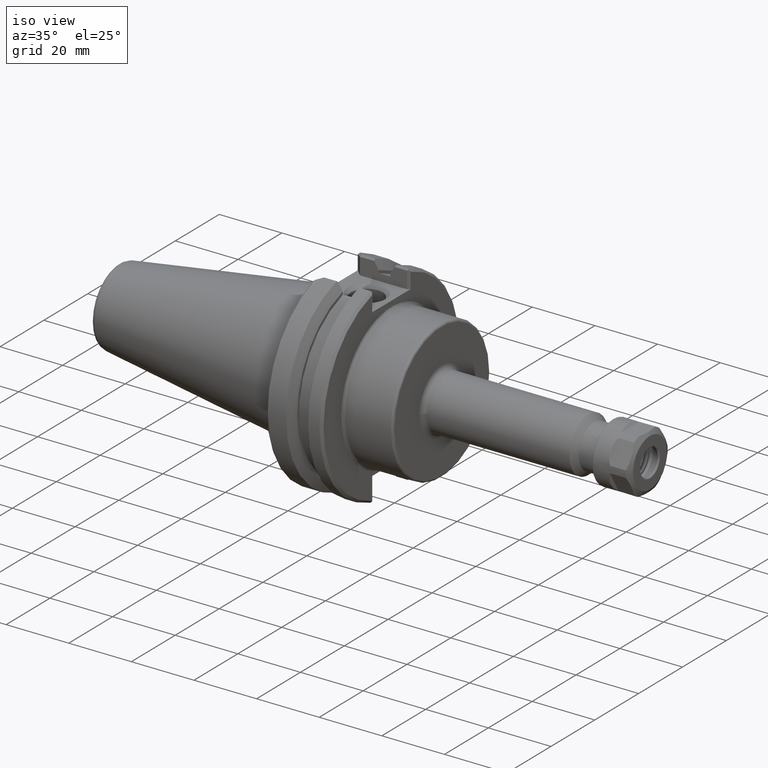
[diagram: clean part render]
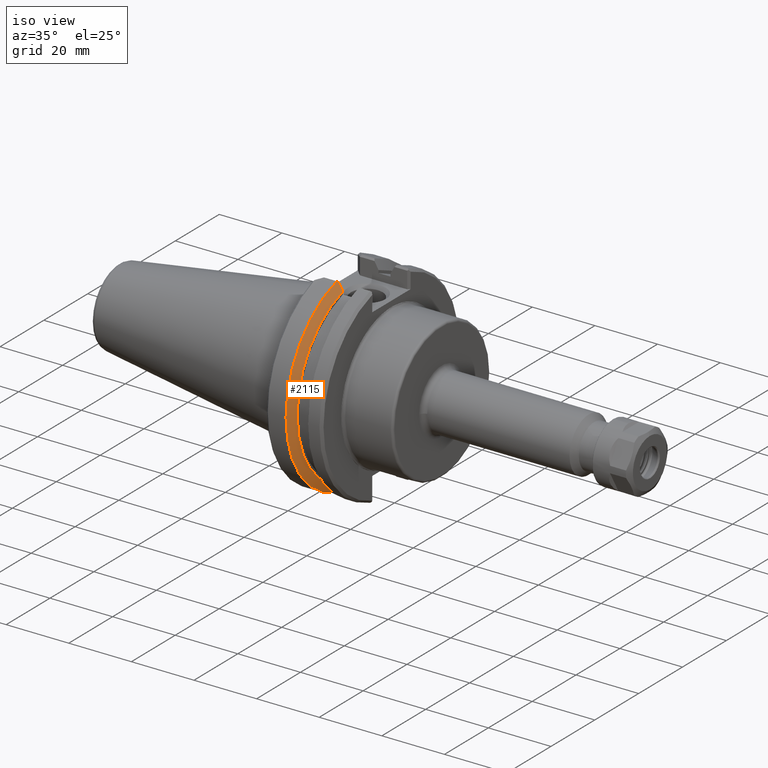
[diagram: same view with one face highlighted and labeled with its STEP entity id]
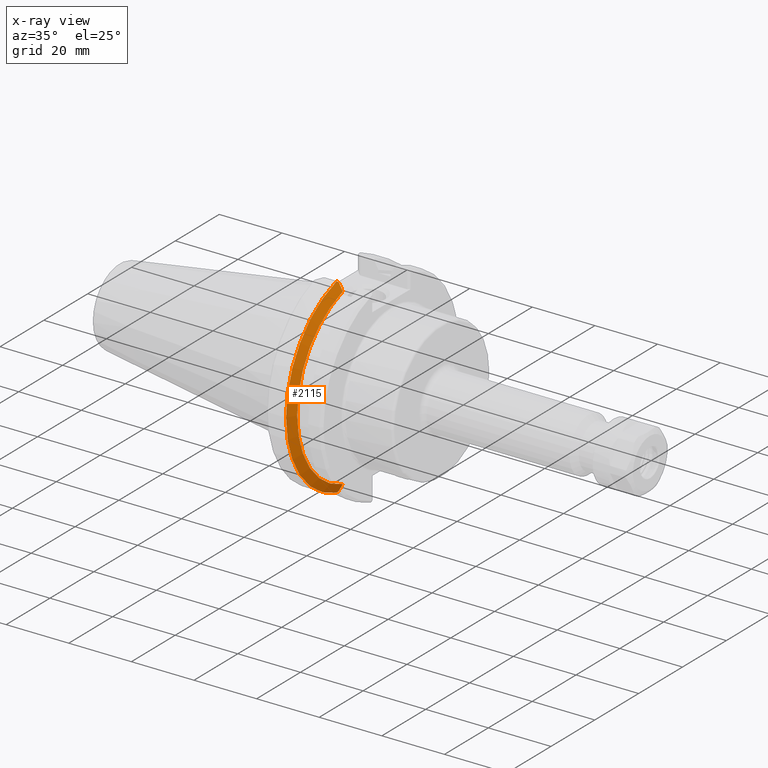
[diagram: x-ray of the same camera — body ghosted, the highlighted face saturated]
A machine part, iso view. The second image highlights one B-rep face of the part: STEP entity #2115.
The next image is the same camera in x-ray: the body ghosted, the highlighted face saturated — about 0% of this face is hidden behind the body in this view.
In plain terms, the highlighted conical surface has half-angle 60 deg.
Its self-contained STEP definition (entity closure, byte-faithful):
#46=(
BOUNDED_CURVE()
B_SPLINE_CURVE(2,(#4033,#4034,#4035),.UNSPECIFIED.,.F.,.F.)
B_SPLINE_CURVE_WITH_KNOTS((3,3),(0.,0.260803090047013),.UNSPECIFIED.)
CURVE()
GEOMETRIC_REPRESENTATION_ITEM()
RATIONAL_B_SPLINE_CURVE((1.,1.00089549356573,1.00037936412824))
REPRESENTATION_ITEM('')
);
#48=(
BOUNDED_CURVE()
B_SPLINE_CURVE(2,(#4050,#4051,#4052),.UNSPECIFIED.,.F.,.F.)
B_SPLINE_CURVE_WITH_KNOTS((3,3),(0.,0.0759070279676467),.UNSPECIFIED.)
CURVE()
GEOMETRIC_REPRESENTATION_ITEM()
RATIONAL_B_SPLINE_CURVE((1.,1.00029966265219,1.0004736224983))
REPRESENTATION_ITEM('')
);
#49=(
BOUNDED_CURVE()
B_SPLINE_CURVE(2,(#4062,#4063,#4064),.UNSPECIFIED.,.F.,.F.)
B_SPLINE_CURVE_WITH_KNOTS((3,3),(0.286002177243513,0.36190920521188),
 .UNSPECIFIED.)
CURVE()
GEOMETRIC_REPRESENTATION_ITEM()
RATIONAL_B_SPLINE_CURVE((1.00047362249843,1.00029966265228,1.))
REPRESENTATION_ITEM('')
);
#50=(
BOUNDED_CURVE()
B_SPLINE_CURVE(2,(#4067,#4068,#4069),.UNSPECIFIED.,.F.,.F.)
B_SPLINE_CURVE_WITH_KNOTS((3,3),(0.070089065332968,0.330892155380514),
 .UNSPECIFIED.)
CURVE()
GEOMETRIC_REPRESENTATION_ITEM()
RATIONAL_B_SPLINE_CURVE((1.00037936412777,1.00089549356463,1.))
REPRESENTATION_ITEM('')
);
#99=CONICAL_SURFACE('',#2277,1.28590991798575,60.0000000000093);
#532=FACE_OUTER_BOUND('',#684,.T.);
#684=EDGE_LOOP('',(#1590,#1591,#1592,#1593,#1594,#1595));
#839=CIRCLE('',#2260,1.25);
#844=CIRCLE('',#2278,1.14031983597146);
#981=VERTEX_POINT('',#3609);
#982=VERTEX_POINT('',#3611);
#1007=VERTEX_POINT('',#4030);
#1008=VERTEX_POINT('',#4032);
#1016=VERTEX_POINT('',#4060);
#1017=VERTEX_POINT('',#4066);
#1195=EDGE_CURVE('',#981,#982,#839,.T.);
#1232=EDGE_CURVE('',#1008,#1007,#46,.T.);
#1239=EDGE_CURVE('',#982,#1007,#48,.T.);
#1244=EDGE_CURVE('',#1016,#981,#49,.T.);
#1245=EDGE_CURVE('',#1016,#1017,#50,.T.);
#1246=EDGE_CURVE('',#1017,#1008,#844,.T.);
#1590=ORIENTED_EDGE('',*,*,#1244,.F.);
#1591=ORIENTED_EDGE('',*,*,#1245,.T.);
#1592=ORIENTED_EDGE('',*,*,#1246,.T.);
#1593=ORIENTED_EDGE('',*,*,#1232,.T.);
#1594=ORIENTED_EDGE('',*,*,#1239,.F.);
#1595=ORIENTED_EDGE('',*,*,#1195,.F.);
#2115=ADVANCED_FACE('',(#532),#99,.T.);
#2260=AXIS2_PLACEMENT_3D('',#3612,#2558,#2559);
#2277=AXIS2_PLACEMENT_3D('',#4065,#2623,#2624);
#2278=AXIS2_PLACEMENT_3D('',#4070,#2625,#2626);
#2558=DIRECTION('center_axis',(-1.,0.,0.));
#2559=DIRECTION('ref_axis',(-1.62451355720802E-13,1.,0.));
#2623=DIRECTION('center_axis',(-1.,-1.62451355720802E-13,0.));
#2624=DIRECTION('ref_axis',(-1.62482077846417E-13,1.,0.));
#2625=DIRECTION('center_axis',(-1.,-1.62451355720802E-13,0.));
#2626=DIRECTION('ref_axis',(-1.62482077846417E-13,1.,0.));
#3609=CARTESIAN_POINT('',(0.299526127773361,-0.339628138321223,-1.20297661143534));
#3611=CARTESIAN_POINT('',(0.299526127773361,-0.339628138321233,1.20297661143534));
#3612=CARTESIAN_POINT('Origin',(0.299526127773361,0.,0.));
#4030=CARTESIAN_POINT('',(0.313469259546256,-0.319999999999719,1.18334597694542));
#4032=CARTESIAN_POINT('',(0.362850000000027,-0.319999999999719,1.09449957894464));
#4033=CARTESIAN_POINT('Ctrl Pts',(0.362850000000161,-0.319999999999719,
1.0944995789444));
#4034=CARTESIAN_POINT('Ctrl Pts',(0.33912266717214,-0.319999999999719,1.13731701223309));
#4035=CARTESIAN_POINT('Ctrl Pts',(0.313469259546256,-0.319999999999719,
1.18334597694542));
#4050=CARTESIAN_POINT('Ctrl Pts',(0.29952612777301,-0.339628138321744,1.20297661143585));
#4051=CARTESIAN_POINT('Ctrl Pts',(0.306587545821509,-0.329718339662765,
1.19306555251847));
#4052=CARTESIAN_POINT('Ctrl Pts',(0.313469259546256,-0.319999999999719,
1.18334597694542));
#4060=CARTESIAN_POINT('',(0.313469259546249,-0.319999999999731,-1.18334597694543));
#4062=CARTESIAN_POINT('Ctrl Pts',(0.313469259546249,-0.319999999999731,
-1.18334597694543));
#4063=CARTESIAN_POINT('Ctrl Pts',(0.306587545821425,-0.329718339662885,
-1.19306555251858));
#4064=CARTESIAN_POINT('Ctrl Pts',(0.299526127772862,-0.339628138321954,
-1.20297661143606));
#4065=CARTESIAN_POINT('Origin',(0.278793526957718,2.63584395670292E-13,
0.));
#4066=CARTESIAN_POINT('',(0.362850000000027,-0.319999999999723,-1.09449957894463));
#4067=CARTESIAN_POINT('Ctrl Pts',(0.313469259546249,-0.319999999999731,
-1.18334597694543));
#4068=CARTESIAN_POINT('Ctrl Pts',(0.339122667172351,-0.319999999999727,
-1.1373170122327));
#4069=CARTESIAN_POINT('Ctrl Pts',(0.362850000000161,-0.319999999999723,
-1.09449957894439));
#4070=CARTESIAN_POINT('Origin',(0.362849999999976,2.77239483673116E-13,
0.));